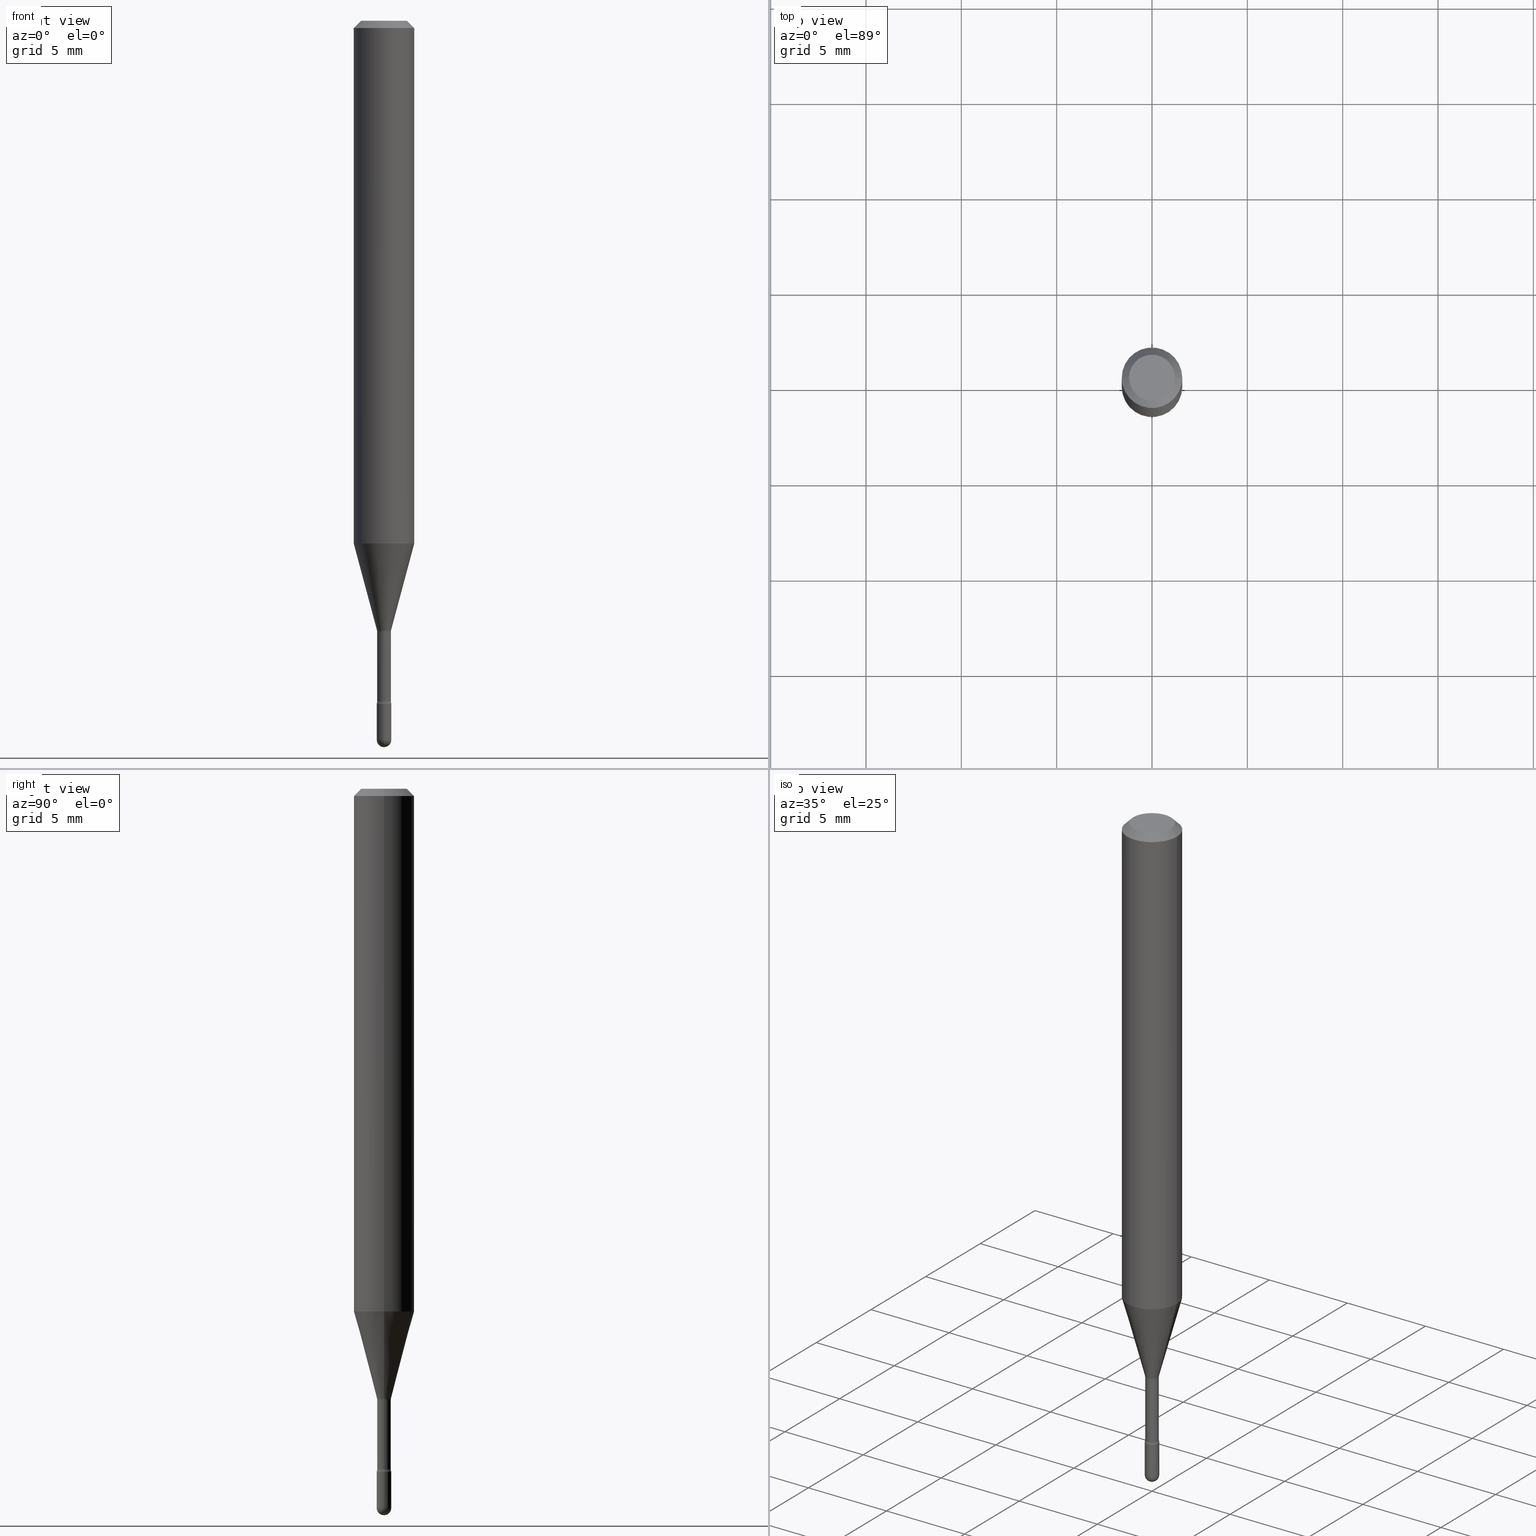
[diagram: canonical four-view strip — front | top / right | iso, engineering-drawing reading convention]
A machine part, canonical four-view strip (front | top / right | iso — engineering-drawing reading convention). The complete STEP part file that produces these views, byte-faithful:
ISO-10303-21;
HEADER;
FILE_DESCRIPTION (( 'STEP AP203' ),
    '1' );
FILE_NAME ('09793.STEP',
    '2024-04-10T01:24:10',
    ( '' ),
    ( '' ),
    'SwSTEP 2.0',
    'SolidWorks 2023',
    '' );
FILE_SCHEMA (( 'CONFIG_CONTROL_DESIGN' ));
ENDSEC;

DATA;
#1 = EDGE_CURVE ( 'NONE', #209, #519, #377, .T. ) ;
#2 = APPROVAL_DATE_TIME ( #486, #33 ) ;
#3 = VERTEX_POINT ( 'NONE', #210 ) ;
#4 = DIRECTION ( 'NONE',  ( -2.445468806185136877E-29, 3.491481338843145188E-15, 1.000000000000000000 ) ) ;
#5 = AXIS2_PLACEMENT_3D ( 'NONE', #19, #283, #155 ) ;
#6 = AXIS2_PLACEMENT_3D ( 'NONE', #42, #224, #302 ) ;
#7 = ORIENTED_EDGE ( 'NONE', *, *, #357, .F. ) ;
#8 = EDGE_CURVE ( 'NONE', #459, #235, #105, .T. ) ;
#9 = DIRECTION ( 'NONE',  ( 1.000000000000000000, -6.982962677686262766E-15, 0.000000000000000000 ) ) ;
#10 = EDGE_LOOP ( 'NONE', ( #522, #309, #144, #277 ) ) ;
#11 = DIRECTION ( 'NONE',  ( -2.445468806185136597E-29, 3.491481338843145583E-15, 1.000000000000000000 ) ) ;
#12 = ORIENTED_EDGE ( 'NONE', *, *, #149, .T. ) ;
#13 = CIRCLE ( 'NONE', #329, 0.01499999999999998730 ) ;
#14 = AXIS2_PLACEMENT_3D ( 'NONE', #133, #47, #342 ) ;
#15 = TOROIDAL_SURFACE ( 'NONE', #22, 0.02910000000000001821, 0.01499999999999998036 ) ;
#16 = LINE ( 'NONE', #206, #434 ) ;
#17 = DIRECTION ( 'NONE',  ( -2.445468806185136597E-29, 3.491481338843145583E-15, 1.000000000000000000 ) ) ;
#18 = FACE_OUTER_BOUND ( 'NONE', #79, .T. ) ;
#19 = CARTESIAN_POINT ( 'NONE',  ( 3.448111016721042669E-29, -4.922988687768835701E-15, -1.409999999999999920 ) ) ;
#20 = EDGE_CURVE ( 'NONE', #420, #554, #13, .T. ) ;
#21 = AXIS2_PLACEMENT_3D ( 'NONE', #134, #126, #9 ) ;
#22 = AXIS2_PLACEMENT_3D ( 'NONE', #54, #212, #543 ) ;
#23 = LINE ( 'NONE', #414, #394 ) ;
#24 = CARTESIAN_POINT ( 'NONE',  ( -1.065814103639786501E-16, -0.01500000000000517586, -1.485000000000000098 ) ) ;
#25 = EDGE_CURVE ( 'NONE', #564, #519, #400, .T. ) ;
#26 = VECTOR ( 'NONE', #97, 39.37007874015748143 ) ;
#27 = CARTESIAN_POINT ( 'NONE',  ( 3.448111016721042669E-29, -4.922988687768835701E-15, -1.409999999999999920 ) ) ;
#28 = ORIENTED_EDGE ( 'NONE', *, *, #390, .F. ) ;
#29 = ADVANCED_FACE ( 'NONE', ( #299 ), #31, .T. ) ;
#30 = VERTEX_POINT ( 'NONE', #218 ) ;
#31 = CYLINDRICAL_SURFACE ( 'NONE', #245, 0.01499999999999999771 ) ;
#32 = LENGTH_MEASURE_WITH_UNIT ( LENGTH_MEASURE( 0.02539999999999999897 ), #411 );
#33 = APPROVAL ( #305, 'UNSPECIFIED' ) ;
#34 = ORIENTED_EDGE ( 'NONE', *, *, #406, .T. ) ;
#35 = PERSON_AND_ORGANIZATION ( #57, #254 ) ;
#36 = DIRECTION ( 'NONE',  ( 1.000000000000000000, -6.982962677686267499E-15, 4.732278860391928788E-29 ) ) ;
#37 = CARTESIAN_POINT ( 'NONE',  ( -0.01410000000000001703, 1.001865257421759236E-16, 4.780733988912454223E-16 ) ) ;
#38 = AXIS2_PLACEMENT_3D ( 'NONE', #310, #261, #174 ) ;
#39 = ORIENTED_EDGE ( 'NONE', *, *, #474, .F. ) ;
#40 = VECTOR ( 'NONE', #324, 39.37007874015748143 ) ;
#41 = DIRECTION ( 'NONE',  ( -2.445468806185136597E-29, 3.491481338843145583E-15, 1.000000000000000000 ) ) ;
#42 = CARTESIAN_POINT ( 'NONE',  ( 0.000000000000000000, 0.000000000000000000, 0.000000000000000000 ) ) ;
#43 = ORIENTED_EDGE ( 'NONE', *, *, #62, .T. ) ;
#44 = DIRECTION ( 'NONE',  ( 1.000000000000000000, -6.982962677686267499E-15, 4.732278860391928788E-29 ) ) ;
#45 = CALENDAR_DATE ( 2024, 9, 4 ) ;
#46 = DIRECTION ( 'NONE',  ( -2.438088387897960049E-29, 3.491481338843145188E-15, 1.000000000000000000 ) ) ;
#47 = DIRECTION ( 'NONE',  ( 7.105427357601001859E-15, 1.000000000000000000, -3.491481338843145583E-15 ) ) ;
#48 = ORIENTED_EDGE ( 'NONE', *, *, #488, .F. ) ;
#49 = DIRECTION ( 'NONE',  ( 1.000000000000000000, -6.982962677686258033E-15, 4.883557194083110098E-29 ) ) ;
#50 = CIRCLE ( 'NONE', #116, 0.01500000000000001853 ) ;
#51 =( GEOMETRIC_REPRESENTATION_CONTEXT ( 3 ) GLOBAL_UNCERTAINTY_ASSIGNED_CONTEXT ( ( #191 ) ) GLOBAL_UNIT_ASSIGNED_CONTEXT ( ( #229, #160, #436 ) ) REPRESENTATION_CONTEXT ( 'NONE', 'WORKASPACE' ) );
#52 = ORIENTED_EDGE ( 'NONE', *, *, #146, .T. ) ;
#53 = SPHERICAL_SURFACE ( 'NONE', #303, 0.01499999999999998730 ) ;
#54 = CARTESIAN_POINT ( 'NONE',  ( 3.435596044883590272E-29, -4.905120624796168010E-15, -1.404882383367230592 ) ) ;
#55 = EDGE_LOOP ( 'NONE', ( #384, #471, #190, #130 ) ) ;
#56 = CARTESIAN_POINT ( 'NONE',  ( 3.668844583994589577E-29, -5.236303523165358484E-15, -1.500000000000000222 ) ) ;
#57 = PERSON ( 'UNSPECIFIED', 'UNSPECIFIED', 'UNSPECIFIED', ('UNSPECIFIED'), ('UNSPECIFIED'), ('UNSPECIFIED') ) ;
#58 = CC_DESIGN_PERSON_AND_ORGANIZATION_ASSIGNMENT ( #513, #265, ( #142 ) ) ;
#59 = CARTESIAN_POINT ( 'NONE',  ( 0.06250000000000000000, -4.888073874380391431E-16, -0.01500000000000008271 ) ) ;
#60 = CARTESIAN_POINT ( 'NONE',  ( -1.169113584055446105E-44, 1.669184350826100908E-30, 4.780733988912460139E-16 ) ) ;
#61 = CARTESIAN_POINT ( 'NONE',  ( -0.06250000000000000000, 4.440892098500642925E-16, 4.780733988912429571E-16 ) ) ;
#62 = EDGE_CURVE ( 'NONE', #301, #183, #72, .T. ) ;
#63 = CIRCLE ( 'NONE', #5, 0.01499999999999999944 ) ;
#64 = CC_DESIGN_APPROVAL ( #33, ( #493 ) ) ;
#65 = PERSON_AND_ORGANIZATION ( #57, #254 ) ;
#66 = DIRECTION ( 'NONE',  ( 2.445468806185136597E-29, -3.491481338843145583E-15, -1.000000000000000000 ) ) ;
#67 = EDGE_CURVE ( 'NONE', #183, #459, #352, .T. ) ;
#68 = DIRECTION ( 'NONE',  ( -2.445468806185136597E-29, 3.491481338843145583E-15, 1.000000000000000000 ) ) ;
#69 = ADVANCED_FACE ( 'NONE', ( #290 ), #504, .T. ) ;
#70 = ORIENTED_EDGE ( 'NONE', *, *, #306, .T. ) ;
#71 = DIRECTION ( 'NONE',  ( 1.000000000000000000, -6.982962677686245411E-15, 0.000000000000000000 ) ) ;
#72 = CIRCLE ( 'NONE', #523, 0.01410000000000003785 ) ;
#73 = AXIS2_PLACEMENT_3D ( 'NONE', #489, #91, #189 ) ;
#74 = AXIS2_PLACEMENT_3D ( 'NONE', #27, #216, #373 ) ;
#75 = CARTESIAN_POINT ( 'NONE',  ( 3.631521177184928138E-29, -5.184849788182071492E-15, -1.485000000000000098 ) ) ;
#76 = DIRECTION ( 'NONE',  ( -2.445468806185136597E-29, 3.491481338843145583E-15, 1.000000000000000000 ) ) ;
#77 = APPROVAL ( #510, 'UNSPECIFIED' ) ;
#78 = ADVANCED_FACE ( 'NONE', ( #259 ), #262, .T. ) ;
#79 = EDGE_LOOP ( 'NONE', ( #447, #429 ) ) ;
#80 = CARTESIAN_POINT ( 'NONE',  ( -0.02909999999999999740, -4.199393484414252585E-15, -1.261974787463811198 ) ) ;
#81 = APPROVAL_ROLE ( '' ) ;
#82 = VECTOR ( 'NONE', #448, 39.37007874015748143 ) ;
#83 = ORIENTED_EDGE ( 'NONE', *, *, #162, .T. ) ;
#84 = EDGE_CURVE ( 'NONE', #360, #440, #541, .T. ) ;
#85 = CARTESIAN_POINT ( 'NONE',  ( -1.169113584055446105E-44, 1.669184350826100908E-30, 4.780733988912460139E-16 ) ) ;
#86 = PERSON_AND_ORGANIZATION ( #57, #254 ) ;
#87 = EDGE_LOOP ( 'NONE', ( #345, #43, #335, #427 ) ) ;
#88 = ADVANCED_FACE ( 'NONE', ( #313 ), #272, .T. ) ;
#89 = CARTESIAN_POINT ( 'NONE',  ( 1.047444401653284739E-16, 0.01499999999999507630, -1.409999999999999920 ) ) ;
#90 = ORIENTED_EDGE ( 'NONE', *, *, #306, .F. ) ;
#91 = DIRECTION ( 'NONE',  ( -2.445468806185136597E-29, 3.491481338843145583E-15, 1.000000000000000000 ) ) ;
#92 = ORIENTED_EDGE ( 'NONE', *, *, #267, .F. ) ;
#93 = CARTESIAN_POINT ( 'NONE',  ( 0.06250000000000000000, -4.364351673553899931E-16, 4.780733988912490708E-16 ) ) ;
#94 = CIRCLE ( 'NONE', #253, 0.04749999999999999362 ) ;
#95 = APPROVAL_PERSON_ORGANIZATION ( #65, #77, #389 ) ;
#96 = ORIENTED_EDGE ( 'NONE', *, *, #552, .F. ) ;
#97 = DIRECTION ( 'NONE',  ( -2.445468806185136877E-29, 3.491481338843145188E-15, 1.000000000000000000 ) ) ;
#98 = ORIENTED_EDGE ( 'NONE', *, *, #162, .F. ) ;
#99 = EDGE_CURVE ( 'NONE', #270, #519, #388, .T. ) ;
#100 = DIRECTION ( 'NONE',  ( -2.445468806185136597E-29, 3.491481338843145583E-15, 1.000000000000000000 ) ) ;
#101 = AXIS2_PLACEMENT_3D ( 'NONE', #548, #512, #159 ) ;
#102 = TOROIDAL_SURFACE ( 'NONE', #211, 0.02909999999999999740, 0.01500000000000002200 ) ;
#103 = CARTESIAN_POINT ( 'NONE',  ( 3.435596044883590272E-29, -4.905120624796168010E-15, -1.404882383367230592 ) ) ;
#104 = PERSON_AND_ORGANIZATION_ROLE ( 'creator' ) ;
#105 = CIRCLE ( 'NONE', #453, 0.01499999999999999944 ) ;
#106 = CIRCLE ( 'NONE', #275, 0.01410000000000003785 ) ;
#107 = CARTESIAN_POINT ( 'NONE',  ( 3.435596044883589712E-29, -4.905120624796166432E-15, -1.404882383367230370 ) ) ;
#108 = DIRECTION ( 'NONE',  ( 1.000000000000000000, -6.982962677686269077E-15, 0.000000000000000000 ) ) ;
#109 = ORIENTED_EDGE ( 'NONE', *, *, #534, .F. ) ;
#110 = DIRECTION ( 'NONE',  ( -2.445468806185136597E-29, 3.491481338843145583E-15, 1.000000000000000000 ) ) ;
#111 = DIRECTION ( 'NONE',  ( 2.445468806185136597E-29, -3.491481338843145583E-15, -1.000000000000000000 ) ) ;
#112 = EDGE_LOOP ( 'NONE', ( #415, #387, #52, #289 ) ) ;
#113 = ADVANCED_FACE ( 'NONE', ( #565 ), #102, .F. ) ;
#114 = MECHANICAL_CONTEXT ( 'NONE', #467, 'mechanical' ) ;
#115 = DIRECTION ( 'NONE',  ( 1.000000000000000000, -6.982962677686266711E-15, 4.852736867747366207E-29 ) ) ;
#116 = AXIS2_PLACEMENT_3D ( 'NONE', #196, #502, #457 ) ;
#117 = CIRCLE ( 'NONE', #14, 0.01499999999999998036 ) ;
#118 = CIRCLE ( 'NONE', #481, 0.04749999999999999362 ) ;
#119 = ORIENTED_EDGE ( 'NONE', *, *, #474, .T. ) ;
#120 = CALENDAR_DATE ( 2024, 9, 4 ) ;
#121 = EDGE_LOOP ( 'NONE', ( #217, #468 ) ) ;
#122 = DIRECTION ( 'NONE',  ( -7.105427357601001070E-15, -1.000000000000000000, 0.000000000000000000 ) ) ;
#123 = FACE_OUTER_BOUND ( 'NONE', #344, .T. ) ;
#124 = ADVANCED_FACE ( 'NONE', ( #184 ), #53, .T. ) ;
#125 = CARTESIAN_POINT ( 'NONE',  ( 0.04749999999999999362, -4.035134999187581581E-16, -8.274703207154280181E-17 ) ) ;
#126 = DIRECTION ( 'NONE',  ( -2.445468806185136597E-29, 3.491481338843145583E-15, 1.000000000000000000 ) ) ;
#127 = ORIENTED_EDGE ( 'NONE', *, *, #281, .F. ) ;
#128 = DIRECTION ( 'NONE',  ( 1.000000000000000000, -6.982962677686245411E-15, 0.000000000000000000 ) ) ;
#129 = AXIS2_PLACEMENT_3D ( 'NONE', #334, #111, #314 ) ;
#130 = ORIENTED_EDGE ( 'NONE', *, *, #67, .F. ) ;
#131 = CARTESIAN_POINT ( 'NONE',  ( -0.06250000000000000000, 3.840629472727441958E-16, -0.01500000000000008271 ) ) ;
#132 = DIRECTION ( 'NONE',  ( 1.000000000000000000, -6.982962677686268288E-15, 0.000000000000000000 ) ) ;
#133 = CARTESIAN_POINT ( 'NONE',  ( -0.02910000000000001821, -4.698352688689978751E-15, -1.404882383367230592 ) ) ;
#134 = CARTESIAN_POINT ( 'NONE',  ( 2.639562586275698746E-29, -3.768595816630689586E-15, -1.079368740913666747 ) ) ;
#135 = SHAPE_DEFINITION_REPRESENTATION ( #490, #304 ) ;
#136 = ORIENTED_EDGE ( 'NONE', *, *, #255, .T. ) ;
#137 = DIRECTION ( 'NONE',  ( -1.000000000000000000, 6.982962677686265922E-15, -4.883557194083113462E-29 ) ) ;
#138 = EDGE_LOOP ( 'NONE', ( #496, #354 ) ) ;
#139 = DIRECTION ( 'NONE',  ( -1.000000000000000000, 6.982962677686265922E-15, -4.883557194083113462E-29 ) ) ;
#140 = AXIS2_PLACEMENT_3D ( 'NONE', #410, #145, #317 ) ;
#141 = FACE_OUTER_BOUND ( 'NONE', #10, .T. ) ;
#142 = PRODUCT ( '09793', '09793', '', ( #114 ) ) ;
#143 = CALENDAR_DATE ( 2024, 9, 4 ) ;
#144 = ORIENTED_EDGE ( 'NONE', *, *, #255, .F. ) ;
#145 = DIRECTION ( 'NONE',  ( -2.445468806185136597E-29, 3.491481338843145583E-15, 1.000000000000000000 ) ) ;
#146 = EDGE_CURVE ( 'NONE', #176, #564, #311, .T. ) ;
#147 = CARTESIAN_POINT ( 'NONE',  ( 0.01499999999999999771, -1.047444401652939859E-16, 7.314265163693902638E-31 ) ) ;
#148 = CYLINDRICAL_SURFACE ( 'NONE', #492, 0.06250000000000000000 ) ;
#149 = EDGE_CURVE ( 'NONE', #537, #270, #16, .T. ) ;
#150 = AXIS2_PLACEMENT_3D ( 'NONE', #75, #477, #442 ) ;
#151 = DIRECTION ( 'NONE',  ( -2.445468806185136877E-29, 3.491481338843145188E-15, 1.000000000000000000 ) ) ;
#152 = CIRCLE ( 'NONE', #469, 0.01499999999999999771 ) ;
#153 = FACE_OUTER_BOUND ( 'NONE', #287, .T. ) ;
#154 = DIRECTION ( 'NONE',  ( -2.445468806185136597E-29, 3.491481338843145583E-15, 1.000000000000000000 ) ) ;
#155 = DIRECTION ( 'NONE',  ( 1.000000000000000000, -6.982962677686268288E-15, 0.000000000000000000 ) ) ;
#156 = TOROIDAL_SURFACE ( 'NONE', #73, 0.02909999999999999740, 0.01500000000000002200 ) ;
#157 = DIRECTION ( 'NONE',  ( -2.445468806185136597E-29, 3.491481338843145583E-15, 1.000000000000000000 ) ) ;
#158 = ORIENTED_EDGE ( 'NONE', *, *, #20, .T. ) ;
#159 = DIRECTION ( 'NONE',  ( 1.000000000000000000, -6.982962677686276966E-15, 0.000000000000000000 ) ) ;
#160 =( NAMED_UNIT ( * ) PLANE_ANGLE_UNIT ( ) SI_UNIT ( $, .RADIAN. ) );
#161 = CARTESIAN_POINT ( 'NONE',  ( -0.06250000000000001388, -3.324506606780626970E-15, -1.079368740913666747 ) ) ;
#162 = EDGE_CURVE ( 'NONE', #420, #440, #533, .T. ) ;
#163 = ORIENTED_EDGE ( 'NONE', *, *, #20, .F. ) ;
#164 = DIRECTION ( 'NONE',  ( 1.000000000000000000, -6.982962677686293532E-15, 0.000000000000000000 ) ) ;
#165 = FACE_OUTER_BOUND ( 'NONE', #508, .T. ) ;
#166 = ORIENTED_EDGE ( 'NONE', *, *, #267, .T. ) ;
#167 = ADVANCED_FACE ( 'NONE', ( #153 ), #501, .F. ) ;
#168 = CALENDAR_DATE ( 2024, 9, 4 ) ;
#169 = AXIS2_PLACEMENT_3D ( 'NONE', #498, #100, #368 ) ;
#170 = CARTESIAN_POINT ( 'NONE',  ( 3.076625968416195482E-29, -4.392606492528752047E-15, -1.258092501787273276 ) ) ;
#171 = ORIENTED_EDGE ( 'NONE', *, *, #172, .F. ) ;
#172 = EDGE_CURVE ( 'NONE', #3, #529, #63, .T. ) ;
#173 = COORDINATED_UNIVERSAL_TIME_OFFSET ( 5, 0, .BEHIND. ) ;
#174 = DIRECTION ( 'NONE',  ( 1.000000000000000000, -6.982962677686266711E-15, 0.000000000000000000 ) ) ;
#175 = CARTESIAN_POINT ( 'NONE',  ( 0.01409999999999999795, -4.504621194275817801E-15, -1.261974787463811198 ) ) ;
#176 = VERTEX_POINT ( 'NONE', #546 ) ;
#177 = DIRECTION ( 'NONE',  ( 6.982962677686265922E-15, 1.000000000000000000, 0.000000000000000000 ) ) ;
#178 = EDGE_CURVE ( 'NONE', #256, #537, #321, .T. ) ;
#179 = ORIENTED_EDGE ( 'NONE', *, *, #478, .T. ) ;
#180 = VECTOR ( 'NONE', #433, 39.37007874015748143 ) ;
#181 = AXIS2_PLACEMENT_3D ( 'NONE', #170, #68, #507 ) ;
#182 = LINE ( 'NONE', #147, #40 ) ;
#183 = VERTEX_POINT ( 'NONE', #230 ) ;
#184 = FACE_OUTER_BOUND ( 'NONE', #359, .T. ) ;
#185 = CARTESIAN_POINT ( 'NONE',  ( 0.01410000000000001703, -9.845977375537482273E-17, 4.780733988912467042E-16 ) ) ;
#186 = DIRECTION ( 'NONE',  ( -2.445468806185136597E-29, 3.491481338843145583E-15, 1.000000000000000000 ) ) ;
#187 = ORIENTED_EDGE ( 'NONE', *, *, #503, .F. ) ;
#188 = ADVANCED_FACE ( 'NONE', ( #450 ), #443, .T. ) ;
#189 = DIRECTION ( 'NONE',  ( 1.000000000000000000, -6.982962677686258033E-15, 4.883557194083110098E-29 ) ) ;
#190 = ORIENTED_EDGE ( 'NONE', *, *, #528, .T. ) ;
#191 = UNCERTAINTY_MEASURE_WITH_UNIT (LENGTH_MEASURE( 1.000000000000000082E-05 ), #229, 'distance_accuracy_value', 'NONE');
#192 = CARTESIAN_POINT ( 'NONE',  ( 3.448111016721042669E-29, -4.922988687768835701E-15, -1.409999999999999920 ) ) ;
#193 = AXIS2_PLACEMENT_3D ( 'NONE', #222, #154, #128 ) ;
#194 = LOCAL_TIME ( 21, 24, 10.00000000000000000, #518 ) ;
#195 = DIRECTION ( 'NONE',  ( 1.000000000000000000, -6.982962677686245411E-15, 0.000000000000000000 ) ) ;
#196 = CARTESIAN_POINT ( 'NONE',  ( 0.02909999999999999740, -4.609365634441111959E-15, -1.261974787463811198 ) ) ;
#197 = DIRECTION ( 'NONE',  ( 0.2588190451025211281, 1.565188264969623940E-15, 0.9659258262890682012 ) ) ;
#198 = CARTESIAN_POINT ( 'NONE',  ( 0.01499999999999999771, -5.158663678140747361E-15, -1.485000000000000098 ) ) ;
#199 = ORIENTED_EDGE ( 'NONE', *, *, #503, .T. ) ;
#200 = PLANE ( 'NONE',  #74 ) ;
#201 = AXIS2_PLACEMENT_3D ( 'NONE', #470, #417, #426 ) ;
#202 = APPROVAL_PERSON_ORGANIZATION ( #556, #395, #374 ) ;
#203 = AXIS2_PLACEMENT_3D ( 'NONE', #386, #186, #271 ) ;
#204 = FACE_OUTER_BOUND ( 'NONE', #55, .T. ) ;
#205 = CARTESIAN_POINT ( 'NONE',  ( 0.01499999999999998730, -5.027733127934128282E-15, -1.409999999999999920 ) ) ;
#206 = CARTESIAN_POINT ( 'NONE',  ( 0.01461111260566398153, -4.494635346533574839E-15, -1.258092501787273276 ) ) ;
#207 = DESIGN_CONTEXT ( 'detailed design', #366, 'design' ) ;
#208 = FACE_OUTER_BOUND ( 'NONE', #112, .T. ) ;
#209 = VERTEX_POINT ( 'NONE', #125 ) ;
#210 = CARTESIAN_POINT ( 'NONE',  ( 0.01499999999999999944, -5.027733127934129860E-15, -1.409999999999999920 ) ) ;
#211 = AXIS2_PLACEMENT_3D ( 'NONE', #530, #278, #49 ) ;
#212 = DIRECTION ( 'NONE',  ( -2.445468806185136597E-29, 3.491481338843145583E-15, 1.000000000000000000 ) ) ;
#213 = CARTESIAN_POINT ( 'NONE',  ( -1.169113584055446105E-44, 1.669184350826100908E-30, 4.780733988912460139E-16 ) ) ;
#214 = EDGE_CURVE ( 'NONE', #301, #235, #117, .T. ) ;
#215 = EDGE_CURVE ( 'NONE', #301, #30, #307, .T. ) ;
#216 = DIRECTION ( 'NONE',  ( -2.438088387897960049E-29, 3.491481338843145188E-15, 1.000000000000000000 ) ) ;
#217 = ORIENTED_EDGE ( 'NONE', *, *, #8, .F. ) ;
#218 = CARTESIAN_POINT ( 'NONE',  ( -0.01409999999999999795, -4.555454496916130002E-15, -1.261974787463811198 ) ) ;
#219 = ORIENTED_EDGE ( 'NONE', *, *, #146, .F. ) ;
#220 = DIRECTION ( 'NONE',  ( -1.000000000000000000, 7.105427357601001070E-15, -4.926315508542082329E-29 ) ) ;
#221 = DATE_TIME_ROLE ( 'creation_date' ) ;
#222 = CARTESIAN_POINT ( 'NONE',  ( 3.076625968416195482E-29, -4.392606492528752047E-15, -1.258092501787273276 ) ) ;
#223 = EDGE_LOOP ( 'NONE', ( #397, #399, #179, #199, #298 ) ) ;
#224 = DIRECTION ( 'NONE',  ( 0.000000000000000000, 0.000000000000000000, 1.000000000000000000 ) ) ;
#225 = VECTOR ( 'NONE', #300, 39.37007874015748143 ) ;
#226 = ORIENTED_EDGE ( 'NONE', *, *, #84, .T. ) ;
#227 = CARTESIAN_POINT ( 'NONE',  ( 3.668203209277725232E-31, -5.237222008264747365E-17, -0.01500000000000008271 ) ) ;
#228 = EDGE_CURVE ( 'NONE', #529, #3, #524, .T. ) ;
#229 =( CONVERSION_BASED_UNIT ( 'INCH', #32 ) LENGTH_UNIT ( ) NAMED_UNIT ( #316 ) );
#230 = CARTESIAN_POINT ( 'NONE',  ( 0.01410000000000003785, -5.003580398551543967E-15, -1.404882383367230370 ) ) ;
#231 = APPLICATION_PROTOCOL_DEFINITION ( 'international standard', 'config_control_design', 1994, #366 ) ;
#232 = EDGE_LOOP ( 'NONE', ( #96, #363, #12, #90 ) ) ;
#233 = CARTESIAN_POINT ( 'NONE',  ( 3.631521177184928138E-29, -5.184849788182071492E-15, -1.485000000000000098 ) ) ;
#234 = FACE_OUTER_BOUND ( 'NONE', #476, .T. ) ;
#235 = VERTEX_POINT ( 'NONE', #242 ) ;
#236 = VECTOR ( 'NONE', #151, 39.37007874015748143 ) ;
#237 = ADVANCED_FACE ( 'NONE', ( #485 ), #449, .F. ) ;
#238 = CIRCLE ( 'NONE', #444, 0.01499999999999999771 ) ;
#239 = CARTESIAN_POINT ( 'NONE',  ( 3.631521177184928138E-29, -5.184849788182071492E-15, -1.485000000000000098 ) ) ;
#240 = ORIENTED_EDGE ( 'NONE', *, *, #461, .T. ) ;
#241 = ADVANCED_FACE ( 'NONE', ( #234 ), #156, .F. ) ;
#242 = CARTESIAN_POINT ( 'NONE',  ( -0.01499999999999998730, -4.816407277404820579E-15, -1.409999999999999920 ) ) ;
#243 = CARTESIAN_POINT ( 'NONE',  ( 2.023552857353652888E-45, -2.889097183224559242E-31, -8.274703207154537794E-17 ) ) ;
#244 = CARTESIAN_POINT ( 'NONE',  ( 3.076625968416195482E-29, -4.392606492528752047E-15, -1.258092501787273276 ) ) ;
#245 = AXIS2_PLACEMENT_3D ( 'NONE', #294, #472, #385 ) ;
#246 = FACE_OUTER_BOUND ( 'NONE', #422, .T. ) ;
#247 = AXIS2_PLACEMENT_3D ( 'NONE', #244, #451, #195 ) ;
#248 = PRODUCT_RELATED_PRODUCT_CATEGORY ( 'detail', '', ( #142 ) ) ;
#249 = DIRECTION ( 'NONE',  ( 1.000000000000000000, -6.982962677686269077E-15, 0.000000000000000000 ) ) ;
#250 = CARTESIAN_POINT ( 'NONE',  ( 1.047444401653302611E-16, 0.01499999999999480742, -1.485000000000000098 ) ) ;
#251 = CC_DESIGN_PERSON_AND_ORGANIZATION_ASSIGNMENT ( #396, #308, ( #276 ) ) ;
#252 = CARTESIAN_POINT ( 'NONE',  ( 2.023552857353652888E-45, -2.889097183224559242E-31, -8.274703207154537794E-17 ) ) ;
#253 = AXIS2_PLACEMENT_3D ( 'NONE', #243, #532, #536 ) ;
#254 = ORGANIZATION ( 'UNSPECIFIED', 'UNSPECIFIED', '' ) ;
#255 = EDGE_CURVE ( 'NONE', #519, #564, #284, .T. ) ;
#256 = VERTEX_POINT ( 'NONE', #423 ) ;
#257 = DIRECTION ( 'NONE',  ( -2.445468806185136597E-29, 3.491481338843145583E-15, 1.000000000000000000 ) ) ;
#258 = ORIENTED_EDGE ( 'NONE', *, *, #455, .T. ) ;
#259 = FACE_OUTER_BOUND ( 'NONE', #562, .T. ) ;
#260 = AXIS2_PLACEMENT_3D ( 'NONE', #509, #110, #71 ) ;
#261 = DIRECTION ( 'NONE',  ( -2.445468806185136597E-29, 3.491481338843145583E-15, 1.000000000000000000 ) ) ;
#262 = SPHERICAL_SURFACE ( 'NONE', #320, 0.01499999999999998730 ) ;
#263 = CARTESIAN_POINT ( 'NONE',  ( 0.06250000000000001388, -4.205030983986081256E-15, -1.079368740913666747 ) ) ;
#264 = ORIENTED_EDGE ( 'NONE', *, *, #281, .T. ) ;
#265 = PERSON_AND_ORGANIZATION_ROLE ( 'design_owner' ) ;
#266 = CARTESIAN_POINT ( 'NONE',  ( -0.01410000000000003785, -4.810670688229406832E-15, -1.404882383367230370 ) ) ;
#267 = EDGE_CURVE ( 'NONE', #256, #30, #358, .T. ) ;
#268 = APPROVAL_DATE_TIME ( #327, #77 ) ;
#269 = AXIS2_PLACEMENT_3D ( 'NONE', #85, #11, #44 ) ;
#270 = VERTEX_POINT ( 'NONE', #263 ) ;
#271 = DIRECTION ( 'NONE',  ( 1.000000000000000000, -6.982962677686268288E-15, 0.000000000000000000 ) ) ;
#272 = CYLINDRICAL_SURFACE ( 'NONE', #269, 0.01410000000000001703 ) ;
#273 = ADVANCED_FACE ( 'NONE', ( #165 ), #378, .T. ) ;
#274 = ORIENTED_EDGE ( 'NONE', *, *, #8, .T. ) ;
#275 = AXIS2_PLACEMENT_3D ( 'NONE', #293, #286, #462 ) ;
#276 = PRODUCT_DEFINITION_FORMATION_WITH_SPECIFIED_SOURCE ( 'ANY', '', #142, .NOT_KNOWN. ) ;
#277 = ORIENTED_EDGE ( 'NONE', *, *, #99, .F. ) ;
#278 = DIRECTION ( 'NONE',  ( -2.445468806185136597E-29, 3.491481338843145583E-15, 1.000000000000000000 ) ) ;
#279 = ORIENTED_EDGE ( 'NONE', *, *, #149, .F. ) ;
#280 = ORIENTED_EDGE ( 'NONE', *, *, #357, .T. ) ;
#281 = EDGE_CURVE ( 'NONE', #183, #301, #106, .T. ) ;
#282 = AXIS2_PLACEMENT_3D ( 'NONE', #192, #525, #132 ) ;
#283 = DIRECTION ( 'NONE',  ( -2.445468806185136597E-29, 3.491481338843145583E-15, 1.000000000000000000 ) ) ;
#284 = CIRCLE ( 'NONE', #38, 0.06250000000000000000 ) ;
#285 = CARTESIAN_POINT ( 'NONE',  ( -0.01461111260566398153, -4.288788293295477803E-15, -1.258092501787273276 ) ) ;
#286 = DIRECTION ( 'NONE',  ( -2.445468806185136597E-29, 3.491481338843145583E-15, 1.000000000000000000 ) ) ;
#287 = EDGE_LOOP ( 'NONE', ( #482, #127, #328, #274 ) ) ;
#288 = CARTESIAN_POINT ( 'NONE',  ( 0.06250000000000000000, -4.811533449433681963E-16, -0.01500000000000008271 ) ) ;
#289 = ORIENTED_EDGE ( 'NONE', *, *, #25, .T. ) ;
#290 = FACE_OUTER_BOUND ( 'NONE', #232, .T. ) ;
#291 = CC_DESIGN_PERSON_AND_ORGANIZATION_ASSIGNMENT ( #35, #559, ( #483 ) ) ;
#292 = CIRCLE ( 'NONE', #21, 0.06250000000000000000 ) ;
#293 = CARTESIAN_POINT ( 'NONE',  ( 3.435596044883589712E-29, -4.905120624796166432E-15, -1.404882383367230370 ) ) ;
#294 = CARTESIAN_POINT ( 'NONE',  ( 0.000000000000000000, 0.000000000000000000, 0.000000000000000000 ) ) ;
#295 = LINE ( 'NONE', #285, #542 ) ;
#296 = DIRECTION ( 'NONE',  ( -2.445468806185136597E-29, 3.491481338843145583E-15, 1.000000000000000000 ) ) ;
#297 = DATE_AND_TIME ( #120, #194 ) ;
#298 = ORIENTED_EDGE ( 'NONE', *, *, #228, .F. ) ;
#299 = FACE_OUTER_BOUND ( 'NONE', #223, .T. ) ;
#300 = DIRECTION ( 'NONE',  ( -2.445468806185136877E-29, 3.491481338843145188E-15, 1.000000000000000000 ) ) ;
#301 = VERTEX_POINT ( 'NONE', #266 ) ;
#302 = DIRECTION ( 'NONE',  ( 1.000000000000000000, 0.000000000000000000, 0.000000000000000000 ) ) ;
#303 = AXIS2_PLACEMENT_3D ( 'NONE', #239, #137, #351 ) ;
#304 = ADVANCED_BREP_SHAPE_REPRESENTATION ( '09793', ( #432, #418, #6 ), #51 ) ;
#305 = APPROVAL_STATUS ( 'not_yet_approved' ) ;
#306 = EDGE_CURVE ( 'NONE', #337, #270, #421, .T. ) ;
#307 = LINE ( 'NONE', #37, #225 ) ;
#308 = PERSON_AND_ORGANIZATION_ROLE ( 'design_supplier' ) ;
#309 = ORIENTED_EDGE ( 'NONE', *, *, #367, .T. ) ;
#310 = CARTESIAN_POINT ( 'NONE',  ( 3.668203209277725232E-31, -5.237222008264747365E-17, -0.01500000000000008271 ) ) ;
#311 = LINE ( 'NONE', #131, #82 ) ;
#312 = LOCAL_TIME ( 21, 24, 10.00000000000000000, #439 ) ;
#313 = FACE_OUTER_BOUND ( 'NONE', #87, .T. ) ;
#314 = DIRECTION ( 'NONE',  ( -1.000000000000000000, 6.982962677686266711E-15, 0.000000000000000000 ) ) ;
#315 = DIRECTION ( 'NONE',  ( -2.445468806185136597E-29, 3.491481338843145583E-15, 1.000000000000000000 ) ) ;
#316 = DIMENSIONAL_EXPONENTS ( 1.000000000000000000, 0.000000000000000000, 0.000000000000000000, 0.000000000000000000, 0.000000000000000000, 0.000000000000000000, 0.000000000000000000 ) ;
#317 = DIRECTION ( 'NONE',  ( 1.000000000000000000, -6.982962677686266711E-15, 4.876176775795935793E-29 ) ) ;
#318 = ADVANCED_FACE ( 'NONE', ( #517 ), #431, .T. ) ;
#319 = LINE ( 'NONE', #61, #236 ) ;
#320 = AXIS2_PLACEMENT_3D ( 'NONE', #233, #139, #177 ) ;
#321 = CIRCLE ( 'NONE', #181, 0.01461111260566398153 ) ;
#322 = AXIS2_PLACEMENT_3D ( 'NONE', #551, #408, #362 ) ;
#323 = ADVANCED_FACE ( 'NONE', ( #123 ), #480, .T. ) ;
#324 = DIRECTION ( 'NONE',  ( -2.445468806185136877E-29, 3.491481338843145188E-15, 1.000000000000000000 ) ) ;
#325 = PERSON_AND_ORGANIZATION ( #57, #254 ) ;
#326 = DIRECTION ( 'NONE',  ( -2.445468806185136597E-29, 3.491481338843145583E-15, 1.000000000000000000 ) ) ;
#327 = DATE_AND_TIME ( #143, #413 ) ;
#328 = ORIENTED_EDGE ( 'NONE', *, *, #67, .T. ) ;
#329 = AXIS2_PLACEMENT_3D ( 'NONE', #520, #220, #122 ) ;
#330 = AXIS2_PLACEMENT_3D ( 'NONE', #89, #46, #398 ) ;
#331 = LOCAL_TIME ( 21, 24, 10.00000000000000000, #383 ) ;
#332 = CARTESIAN_POINT ( 'NONE',  ( 3.631521177184928138E-29, -5.184849788182071492E-15, -1.485000000000000098 ) ) ;
#333 = APPROVAL_STATUS ( 'not_yet_approved' ) ;
#334 = CARTESIAN_POINT ( 'NONE',  ( 3.668203209277725232E-31, -5.237222008264747365E-17, -0.01500000000000008271 ) ) ;
#335 = ORIENTED_EDGE ( 'NONE', *, *, #355, .T. ) ;
#336 = DATE_AND_TIME ( #346, #340 ) ;
#337 = VERTEX_POINT ( 'NONE', #161 ) ;
#338 = DIRECTION ( 'NONE',  ( 1.000000000000000000, -6.982962677686266711E-15, 0.000000000000000000 ) ) ;
#339 = CIRCLE ( 'NONE', #247, 0.01461111260566398153 ) ;
#340 = LOCAL_TIME ( 21, 24, 10.00000000000000000, #173 ) ;
#341 = DATE_AND_TIME ( #168, #331 ) ;
#342 = DIRECTION ( 'NONE',  ( -1.000000000000000000, 7.105427357601000281E-15, 0.000000000000000000 ) ) ;
#343 = SECURITY_CLASSIFICATION_LEVEL ( 'unclassified' ) ;
#344 = EDGE_LOOP ( 'NONE', ( #424, #356, #136, #219 ) ) ;
#345 = ORIENTED_EDGE ( 'NONE', *, *, #215, .F. ) ;
#346 = CALENDAR_DATE ( 2024, 9, 4 ) ;
#347 = EDGE_LOOP ( 'NONE', ( #264, #521, #48, #464 ) ) ;
#348 = APPLICATION_PROTOCOL_DEFINITION ( 'international standard', 'config_control_design', 1994, #467 ) ;
#349 = ADVANCED_FACE ( 'NONE', ( #208 ), #370, .T. ) ;
#350 = DIRECTION ( 'NONE',  ( -1.000000000000000000, 6.982962677686265922E-15, -4.876176775795935793E-29 ) ) ;
#351 = DIRECTION ( 'NONE',  ( 6.982962677686265922E-15, 1.000000000000000000, 0.000000000000000000 ) ) ;
#352 = CIRCLE ( 'NONE', #101, 0.01499999999999998036 ) ;
#353 = CARTESIAN_POINT ( 'NONE',  ( 3.631521177184928138E-29, -5.184849788182071492E-15, -1.485000000000000098 ) ) ;
#354 = ORIENTED_EDGE ( 'NONE', *, *, #466, .T. ) ;
#355 = EDGE_CURVE ( 'NONE', #183, #379, #495, .T. ) ;
#356 = ORIENTED_EDGE ( 'NONE', *, *, #1, .T. ) ;
#357 = EDGE_CURVE ( 'NONE', #537, #256, #339, .T. ) ;
#358 = CIRCLE ( 'NONE', #365, 0.01500000000000001853 ) ;
#359 = EDGE_LOOP ( 'NONE', ( #163, #83, #376, #487 ) ) ;
#360 = VERTEX_POINT ( 'NONE', #198 ) ;
#361 = CYLINDRICAL_SURFACE ( 'NONE', #140, 0.01499999999999999771 ) ;
#362 = DIRECTION ( 'NONE',  ( 1.000000000000000000, -6.982962677686244622E-15, 0.000000000000000000 ) ) ;
#363 = ORIENTED_EDGE ( 'NONE', *, *, #178, .T. ) ;
#364 = AXIS2_PLACEMENT_3D ( 'NONE', #372, #66, #560 ) ;
#365 = AXIS2_PLACEMENT_3D ( 'NONE', #80, #473, #375 ) ;
#366 = APPLICATION_CONTEXT ( 'configuration controlled 3d designs of mechanical parts and assemblies' ) ;
#367 = EDGE_CURVE ( 'NONE', #337, #564, #319, .T. ) ;
#368 = DIRECTION ( 'NONE',  ( 1.000000000000000000, -6.982962677686244622E-15, 0.000000000000000000 ) ) ;
#369 = ORIENTED_EDGE ( 'NONE', *, *, #488, .T. ) ;
#370 = CONICAL_SURFACE ( 'NONE', #129, 0.06250000000000000000, 0.7853981633974483900 ) ;
#371 = CARTESIAN_POINT ( 'NONE',  ( -0.06250000000000000000, -1.466394808506606111E-15, -0.01500000000000008271 ) ) ;
#372 = CARTESIAN_POINT ( 'NONE',  ( 3.668203209277725232E-31, -5.237222008264747365E-17, -0.01500000000000008271 ) ) ;
#373 = DIRECTION ( 'NONE',  ( 1.000000000000000000, -6.982962677686265922E-15, 4.876176775795935793E-29 ) ) ;
#374 = APPROVAL_ROLE ( '' ) ;
#375 = DIRECTION ( 'NONE',  ( -1.000000000000000000, 7.105427357601014480E-15, 0.000000000000000000 ) ) ;
#376 = ORIENTED_EDGE ( 'NONE', *, *, #84, .F. ) ;
#377 = LINE ( 'NONE', #288, #180 ) ;
#378 = CYLINDRICAL_SURFACE ( 'NONE', #393, 0.06250000000000000000 ) ;
#379 = VERTEX_POINT ( 'NONE', #175 ) ;
#380 = CLOSED_SHELL ( 'NONE', ( #241, #318, #540, #323, #438, #188, #69, #273, #349, #531, #237, #167, #88, #113 ) ) ;
#381 = CIRCLE ( 'NONE', #169, 0.01409999999999999795 ) ;
#382 = CC_DESIGN_SECURITY_CLASSIFICATION ( #493, ( #276 ) ) ;
#383 = COORDINATED_UNIVERSAL_TIME_OFFSET ( 5, 0, .BEHIND. ) ;
#384 = ORIENTED_EDGE ( 'NONE', *, *, #62, .F. ) ;
#385 = DIRECTION ( 'NONE',  ( 1.000000000000000000, -6.982962677686266711E-15, 4.876176775795935793E-29 ) ) ;
#386 = CARTESIAN_POINT ( 'NONE',  ( 3.448111016721042669E-29, -4.922988687768835701E-15, -1.409999999999999920 ) ) ;
#387 = ORIENTED_EDGE ( 'NONE', *, *, #391, .F. ) ;
#388 = LINE ( 'NONE', #93, #544 ) ;
#389 = APPROVAL_ROLE ( '' ) ;
#390 = EDGE_CURVE ( 'NONE', #270, #337, #292, .T. ) ;
#391 = EDGE_CURVE ( 'NONE', #176, #209, #94, .T. ) ;
#392 = ORIENTED_EDGE ( 'NONE', *, *, #99, .T. ) ;
#393 = AXIS2_PLACEMENT_3D ( 'NONE', #549, #76, #115 ) ;
#394 = VECTOR ( 'NONE', #545, 39.37007874015748143 ) ;
#395 = APPROVAL ( #333, 'UNSPECIFIED' ) ;
#396 = PERSON_AND_ORGANIZATION ( #57, #254 ) ;
#397 = ORIENTED_EDGE ( 'NONE', *, *, #461, .F. ) ;
#398 = DIRECTION ( 'NONE',  ( 1.000000000000000000, -6.982962677686265922E-15, 4.876176775795935793E-29 ) ) ;
#399 = ORIENTED_EDGE ( 'NONE', *, *, #534, .T. ) ;
#400 = CIRCLE ( 'NONE', #479, 0.06250000000000000000 ) ;
#401 = AXIS2_PLACEMENT_3D ( 'NONE', #103, #326, #458 ) ;
#402 = ORIENTED_EDGE ( 'NONE', *, *, #25, .F. ) ;
#403 = CIRCLE ( 'NONE', #203, 0.01499999999999999944 ) ;
#404 = CLOSED_SHELL ( 'NONE', ( #452, #78, #499, #124, #29 ) ) ;
#405 = DIRECTION ( 'NONE',  ( 2.438088387897960049E-29, -3.491481338843145188E-15, -1.000000000000000000 ) ) ;
#406 = EDGE_CURVE ( 'NONE', #537, #379, #50, .T. ) ;
#407 = DIRECTION ( 'NONE',  ( 1.000000000000000000, -6.982962677686265922E-15, 4.883557194083112340E-29 ) ) ;
#408 = DIRECTION ( 'NONE',  ( -2.445468806185136597E-29, 3.491481338843145583E-15, 1.000000000000000000 ) ) ;
#409 = CARTESIAN_POINT ( 'NONE',  ( 0.01461111260566398153, -4.494635346533574839E-15, -1.258092501787273276 ) ) ;
#410 = CARTESIAN_POINT ( 'NONE',  ( 0.000000000000000000, 0.000000000000000000, 0.000000000000000000 ) ) ;
#411 =( LENGTH_UNIT ( ) NAMED_UNIT ( * ) SI_UNIT ( $, .METRE. ) );
#412 = DIRECTION ( 'NONE',  ( 1.000000000000000000, -6.982962677686267499E-15, 4.884662768193073002E-29 ) ) ;
#413 = LOCAL_TIME ( 21, 24, 10.00000000000000000, #484 ) ;
#414 = CARTESIAN_POINT ( 'NONE',  ( -0.01499999999999999771, 1.065814103640150116E-16, -7.378402635382356781E-31 ) ) ;
#415 = ORIENTED_EDGE ( 'NONE', *, *, #1, .F. ) ;
#416 = DIRECTION ( 'NONE',  ( -0.2588190451025211281, 5.211531920934548675E-15, 0.9659258262890682012 ) ) ;
#417 = DIRECTION ( 'NONE',  ( -2.445468806185136597E-29, 3.491481338843145583E-15, 1.000000000000000000 ) ) ;
#418 = MANIFOLD_SOLID_BREP ( 'Body-Move/Copy2[2]', #380 ) ;
#419 = DIRECTION ( 'NONE',  ( 1.000000000000000000, -6.982962677686269077E-15, 0.000000000000000000 ) ) ;
#420 = VERTEX_POINT ( 'NONE', #56 ) ;
#421 = CIRCLE ( 'NONE', #201, 0.06250000000000000000 ) ;
#422 = EDGE_LOOP ( 'NONE', ( #119, #240, #171, #187, #226 ) ) ;
#423 = CARTESIAN_POINT ( 'NONE',  ( -0.01461111260566398153, -3.806647450038052387E-15, -1.258092501787273276 ) ) ;
#424 = ORIENTED_EDGE ( 'NONE', *, *, #466, .F. ) ;
#425 = CARTESIAN_POINT ( 'NONE',  ( 3.448111016721042669E-29, -4.922988687768835701E-15, -1.409999999999999920 ) ) ;
#426 = DIRECTION ( 'NONE',  ( 1.000000000000000000, -6.982962677686262766E-15, 0.000000000000000000 ) ) ;
#427 = ORIENTED_EDGE ( 'NONE', *, *, #455, .F. ) ;
#428 = DIRECTION ( 'NONE',  ( -2.445468806185136597E-29, 3.491481338843145583E-15, 1.000000000000000000 ) ) ;
#429 = ORIENTED_EDGE ( 'NONE', *, *, #228, .T. ) ;
#430 = APPROVAL_DATE_TIME ( #341, #395 ) ;
#431 = CYLINDRICAL_SURFACE ( 'NONE', #514, 0.01410000000000001703 ) ;
#432 = MANIFOLD_SOLID_BREP ( 'Body-Move/Copy2[1]', #404 ) ;
#433 = DIRECTION ( 'NONE',  ( 0.7071067811865475727, -7.319954787623256045E-15, -0.7071067811865474617 ) ) ;
#434 = VECTOR ( 'NONE', #197, 39.37007874015748143 ) ;
#435 = AXIS2_PLACEMENT_3D ( 'NONE', #454, #405, #350 ) ;
#436 =( NAMED_UNIT ( * ) SI_UNIT ( $, .STERADIAN. ) SOLID_ANGLE_UNIT ( ) );
#437 = CARTESIAN_POINT ( 'NONE',  ( -0.01499999999999999771, -4.947337827611438869E-15, -1.485000000000000098 ) ) ;
#438 = ADVANCED_FACE ( 'NONE', ( #141 ), #148, .T. ) ;
#439 = COORDINATED_UNIVERSAL_TIME_OFFSET ( 5, 0, .BEHIND. ) ;
#440 = VERTEX_POINT ( 'NONE', #250 ) ;
#441 = CARTESIAN_POINT ( 'NONE',  ( -0.01500000000000000291, -4.947337827611438869E-15, -1.409999999999999920 ) ) ;
#442 = DIRECTION ( 'NONE',  ( 1.000000000000000000, -6.982962677686269077E-15, 0.000000000000000000 ) ) ;
#443 = CONICAL_SURFACE ( 'NONE', #193, 0.01461111260566398153, 0.2617993877991497964 ) ;
#444 = AXIS2_PLACEMENT_3D ( 'NONE', #353, #17, #249 ) ;
#445 = CC_DESIGN_PERSON_AND_ORGANIZATION_ASSIGNMENT ( #325, #104, ( #276 ) ) ;
#446 = CIRCLE ( 'NONE', #322, 0.01409999999999999795 ) ;
#447 = ORIENTED_EDGE ( 'NONE', *, *, #172, .T. ) ;
#448 = DIRECTION ( 'NONE',  ( -0.7071067811865475727, 2.468850131082257455E-15, -0.7071067811865474617 ) ) ;
#449 = PLANE ( 'NONE',  #330 ) ;
#450 = FACE_OUTER_BOUND ( 'NONE', #491, .T. ) ;
#451 = DIRECTION ( 'NONE',  ( -2.445468806185136597E-29, 3.491481338843145583E-15, 1.000000000000000000 ) ) ;
#452 = ADVANCED_FACE ( 'NONE', ( #246 ), #361, .T. ) ;
#453 = AXIS2_PLACEMENT_3D ( 'NONE', #425, #41, #465 ) ;
#454 = CARTESIAN_POINT ( 'NONE',  ( 3.316907271900976096E-16, 0.04749999999999999362, 3.181781981480094004E-17 ) ) ;
#455 = EDGE_CURVE ( 'NONE', #30, #379, #381, .T. ) ;
#456 = PLANE ( 'NONE',  #435 ) ;
#457 = DIRECTION ( 'NONE',  ( 1.000000000000000000, -6.982962677686259611E-15, 0.000000000000000000 ) ) ;
#458 = DIRECTION ( 'NONE',  ( 1.000000000000000000, -6.982962677686260400E-15, 4.883557194083110659E-29 ) ) ;
#459 = VERTEX_POINT ( 'NONE', #205 ) ;
#460 = AXIS2_PLACEMENT_3D ( 'NONE', #538, #407, #539 ) ;
#461 = EDGE_CURVE ( 'NONE', #515, #529, #23, .T. ) ;
#462 = DIRECTION ( 'NONE',  ( 1.000000000000000000, -6.982962677686293532E-15, 0.000000000000000000 ) ) ;
#463 = CARTESIAN_POINT ( 'NONE',  ( 3.631521177184928138E-29, -5.184849788182071492E-15, -1.485000000000000098 ) ) ;
#464 = ORIENTED_EDGE ( 'NONE', *, *, #355, .F. ) ;
#465 = DIRECTION ( 'NONE',  ( 1.000000000000000000, -6.982962677686268288E-15, 0.000000000000000000 ) ) ;
#466 = EDGE_CURVE ( 'NONE', #209, #176, #118, .T. ) ;
#467 = APPLICATION_CONTEXT ( 'configuration controlled 3d designs of mechanical parts and assemblies' ) ;
#468 = ORIENTED_EDGE ( 'NONE', *, *, #528, .F. ) ;
#469 = AXIS2_PLACEMENT_3D ( 'NONE', #463, #257, #419 ) ;
#470 = CARTESIAN_POINT ( 'NONE',  ( 2.639562586275698746E-29, -3.768595816630689586E-15, -1.079368740913666747 ) ) ;
#471 = ORIENTED_EDGE ( 'NONE', *, *, #214, .T. ) ;
#472 = DIRECTION ( 'NONE',  ( -2.445468806185136597E-29, 3.491481338843145583E-15, 1.000000000000000000 ) ) ;
#473 = DIRECTION ( 'NONE',  ( 7.105427357601001859E-15, 1.000000000000000000, -3.491481338843145583E-15 ) ) ;
#474 = EDGE_CURVE ( 'NONE', #440, #515, #535, .T. ) ;
#475 = PERSON_AND_ORGANIZATION ( #57, #254 ) ;
#476 = EDGE_LOOP ( 'NONE', ( #557, #166, #258, #511 ) ) ;
#477 = DIRECTION ( 'NONE',  ( -2.445468806185136597E-29, 3.491481338843145583E-15, 1.000000000000000000 ) ) ;
#478 = EDGE_CURVE ( 'NONE', #554, #360, #152, .T. ) ;
#479 = AXIS2_PLACEMENT_3D ( 'NONE', #227, #428, #338 ) ;
#480 = CONICAL_SURFACE ( 'NONE', #364, 0.06250000000000000000, 0.7853981633974483900 ) ;
#481 = AXIS2_PLACEMENT_3D ( 'NONE', #252, #157, #412 ) ;
#482 = ORIENTED_EDGE ( 'NONE', *, *, #214, .F. ) ;
#483 = PRODUCT_DEFINITION ( 'UNKNOWN', '', #276, #207 ) ;
#484 = COORDINATED_UNIVERSAL_TIME_OFFSET ( 5, 0, .BEHIND. ) ;
#485 = FACE_OUTER_BOUND ( 'NONE', #121, .T. ) ;
#486 = DATE_AND_TIME ( #45, #312 ) ;
#487 = ORIENTED_EDGE ( 'NONE', *, *, #478, .F. ) ;
#488 = EDGE_CURVE ( 'NONE', #379, #30, #446, .T. ) ;
#489 = CARTESIAN_POINT ( 'NONE',  ( 3.086119976934868225E-29, -4.406161420520441844E-15, -1.261974787463811198 ) ) ;
#490 = PRODUCT_DEFINITION_SHAPE ( 'NONE', 'NONE',  #483 ) ;
#491 = EDGE_LOOP ( 'NONE', ( #280, #500, #28, #279 ) ) ;
#492 = AXIS2_PLACEMENT_3D ( 'NONE', #60, #315, #497 ) ;
#493 = SECURITY_CLASSIFICATION ( '', '', #343 ) ;
#494 = EDGE_LOOP ( 'NONE', ( #92, #7, #34, #369 ) ) ;
#495 = LINE ( 'NONE', #185, #26 ) ;
#496 = ORIENTED_EDGE ( 'NONE', *, *, #391, .T. ) ;
#497 = DIRECTION ( 'NONE',  ( 1.000000000000000000, -6.982962677686266711E-15, 4.852736867747366207E-29 ) ) ;
#498 = CARTESIAN_POINT ( 'NONE',  ( 3.086119976934868225E-29, -4.406161420520441844E-15, -1.261974787463811198 ) ) ;
#499 = ADVANCED_FACE ( 'NONE', ( #18 ), #200, .T. ) ;
#500 = ORIENTED_EDGE ( 'NONE', *, *, #552, .T. ) ;
#501 = TOROIDAL_SURFACE ( 'NONE', #401, 0.02910000000000001821, 0.01499999999999998036 ) ;
#502 = DIRECTION ( 'NONE',  ( -6.982962677686266711E-15, -1.000000000000000000, 3.491481338843145583E-15 ) ) ;
#503 = EDGE_CURVE ( 'NONE', #360, #3, #182, .T. ) ;
#504 = CONICAL_SURFACE ( 'NONE', #260, 0.01461111260566398153, 0.2617993877991497964 ) ;
#505 = AXIS2_PLACEMENT_3D ( 'NONE', #332, #506, #108 ) ;
#506 = DIRECTION ( 'NONE',  ( -2.445468806185136597E-29, 3.491481338843145583E-15, 1.000000000000000000 ) ) ;
#507 = DIRECTION ( 'NONE',  ( 1.000000000000000000, -6.982962677686245411E-15, 0.000000000000000000 ) ) ;
#508 = EDGE_LOOP ( 'NONE', ( #566, #70, #392, #402 ) ) ;
#509 = CARTESIAN_POINT ( 'NONE',  ( 3.076625968416195482E-29, -4.392606492528752047E-15, -1.258092501787273276 ) ) ;
#510 = APPROVAL_STATUS ( 'not_yet_approved' ) ;
#511 = ORIENTED_EDGE ( 'NONE', *, *, #406, .F. ) ;
#512 = DIRECTION ( 'NONE',  ( -6.982962677686266711E-15, -1.000000000000000000, 3.491481338843145583E-15 ) ) ;
#513 = PERSON_AND_ORGANIZATION ( #57, #254 ) ;
#514 = AXIS2_PLACEMENT_3D ( 'NONE', #213, #296, #36 ) ;
#515 = VERTEX_POINT ( 'NONE', #437 ) ;
#516 = CC_DESIGN_APPROVAL ( #395, ( #483 ) ) ;
#517 = FACE_OUTER_BOUND ( 'NONE', #347, .T. ) ;
#518 = COORDINATED_UNIVERSAL_TIME_OFFSET ( 5, 0, .BEHIND. ) ;
#519 = VERTEX_POINT ( 'NONE', #59 ) ;
#520 = CARTESIAN_POINT ( 'NONE',  ( 3.631521177184928138E-29, -5.184849788182071492E-15, -1.485000000000000098 ) ) ;
#521 = ORIENTED_EDGE ( 'NONE', *, *, #215, .T. ) ;
#522 = ORIENTED_EDGE ( 'NONE', *, *, #390, .T. ) ;
#523 = AXIS2_PLACEMENT_3D ( 'NONE', #107, #553, #164 ) ;
#524 = CIRCLE ( 'NONE', #282, 0.01499999999999999944 ) ;
#525 = DIRECTION ( 'NONE',  ( -2.445468806185136597E-29, 3.491481338843145583E-15, 1.000000000000000000 ) ) ;
#526 = PERSON_AND_ORGANIZATION_ROLE ( 'classification_officer' ) ;
#527 = CC_DESIGN_DATE_AND_TIME_ASSIGNMENT ( #297, #561, ( #493 ) ) ;
#528 = EDGE_CURVE ( 'NONE', #235, #459, #403, .T. ) ;
#529 = VERTEX_POINT ( 'NONE', #441 ) ;
#530 = CARTESIAN_POINT ( 'NONE',  ( 3.086119976934868225E-29, -4.406161420520441844E-15, -1.261974787463811198 ) ) ;
#531 = ADVANCED_FACE ( 'NONE', ( #563 ), #456, .F. ) ;
#532 = DIRECTION ( 'NONE',  ( -2.445468806185136597E-29, 3.491481338843145583E-15, 1.000000000000000000 ) ) ;
#533 = CIRCLE ( 'NONE', #460, 0.01499999999999998730 ) ;
#534 = EDGE_CURVE ( 'NONE', #515, #554, #238, .T. ) ;
#535 = CIRCLE ( 'NONE', #505, 0.01499999999999999771 ) ;
#536 = DIRECTION ( 'NONE',  ( 1.000000000000000000, -6.982962677686267499E-15, 4.884662768193073002E-29 ) ) ;
#537 = VERTEX_POINT ( 'NONE', #409 ) ;
#538 = CARTESIAN_POINT ( 'NONE',  ( 3.631521177184928138E-29, -5.184849788182071492E-15, -1.485000000000000098 ) ) ;
#539 = DIRECTION ( 'NONE',  ( 6.982962677686265922E-15, 1.000000000000000000, 0.000000000000000000 ) ) ;
#540 = ADVANCED_FACE ( 'NONE', ( #204 ), #15, .F. ) ;
#541 = CIRCLE ( 'NONE', #150, 0.01499999999999999771 ) ;
#542 = VECTOR ( 'NONE', #416, 39.37007874015748143 ) ;
#543 = DIRECTION ( 'NONE',  ( 1.000000000000000000, -6.982962677686260400E-15, 4.883557194083110659E-29 ) ) ;
#544 = VECTOR ( 'NONE', #4, 39.37007874015748143 ) ;
#545 = DIRECTION ( 'NONE',  ( -2.445468806185136877E-29, 3.491481338843145188E-15, 1.000000000000000000 ) ) ;
#546 = CARTESIAN_POINT ( 'NONE',  ( -0.04749999999999999362, 3.578768372314208041E-16, -8.274703207154778150E-17 ) ) ;
#547 = CC_DESIGN_APPROVAL ( #77, ( #276 ) ) ;
#548 = CARTESIAN_POINT ( 'NONE',  ( 0.02910000000000001821, -5.108324838716837336E-15, -1.404882383367230592 ) ) ;
#549 = CARTESIAN_POINT ( 'NONE',  ( -1.169113584055446105E-44, 1.669184350826100908E-30, 4.780733988912460139E-16 ) ) ;
#550 = CC_DESIGN_PERSON_AND_ORGANIZATION_ASSIGNMENT ( #86, #526, ( #493 ) ) ;
#551 = CARTESIAN_POINT ( 'NONE',  ( 3.086119976934868225E-29, -4.406161420520441844E-15, -1.261974787463811198 ) ) ;
#552 = EDGE_CURVE ( 'NONE', #256, #337, #295, .T. ) ;
#553 = DIRECTION ( 'NONE',  ( -2.445468806185136597E-29, 3.491481338843145583E-15, 1.000000000000000000 ) ) ;
#554 = VERTEX_POINT ( 'NONE', #24 ) ;
#555 = CC_DESIGN_DATE_AND_TIME_ASSIGNMENT ( #336, #221, ( #483 ) ) ;
#556 = PERSON_AND_ORGANIZATION ( #57, #254 ) ;
#557 = ORIENTED_EDGE ( 'NONE', *, *, #178, .F. ) ;
#558 = APPROVAL_PERSON_ORGANIZATION ( #475, #33, #81 ) ;
#559 = PERSON_AND_ORGANIZATION_ROLE ( 'creator' ) ;
#560 = DIRECTION ( 'NONE',  ( -1.000000000000000000, 6.982962677686266711E-15, 0.000000000000000000 ) ) ;
#561 = DATE_TIME_ROLE ( 'classification_date' ) ;
#562 = EDGE_LOOP ( 'NONE', ( #98, #158, #109, #39 ) ) ;
#563 = FACE_OUTER_BOUND ( 'NONE', #138, .T. ) ;
#564 = VERTEX_POINT ( 'NONE', #371 ) ;
#565 = FACE_OUTER_BOUND ( 'NONE', #494, .T. ) ;
#566 = ORIENTED_EDGE ( 'NONE', *, *, #367, .F. ) ;
ENDSEC;
END-ISO-10303-21;
